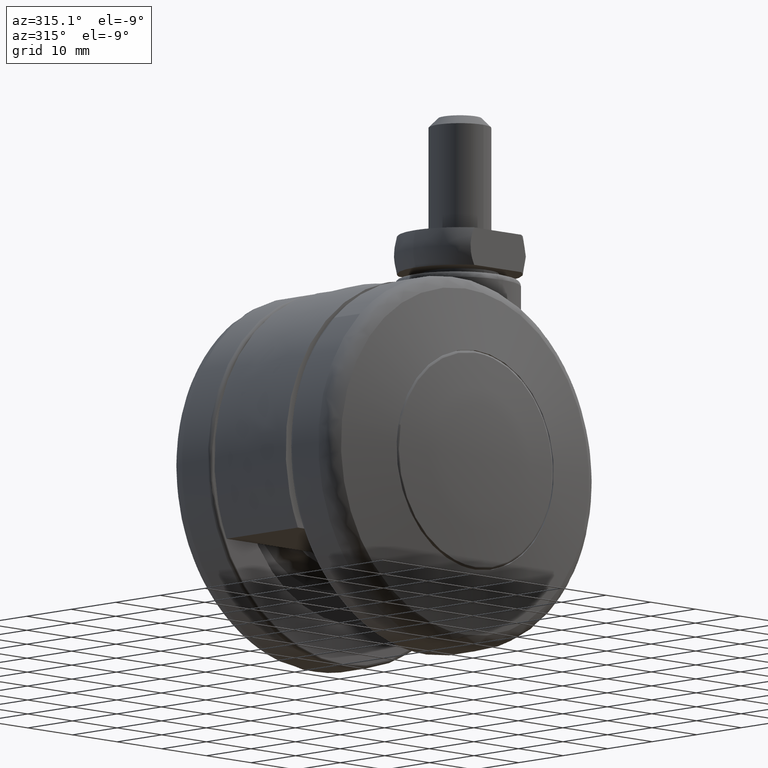
[diagram: clean part render]
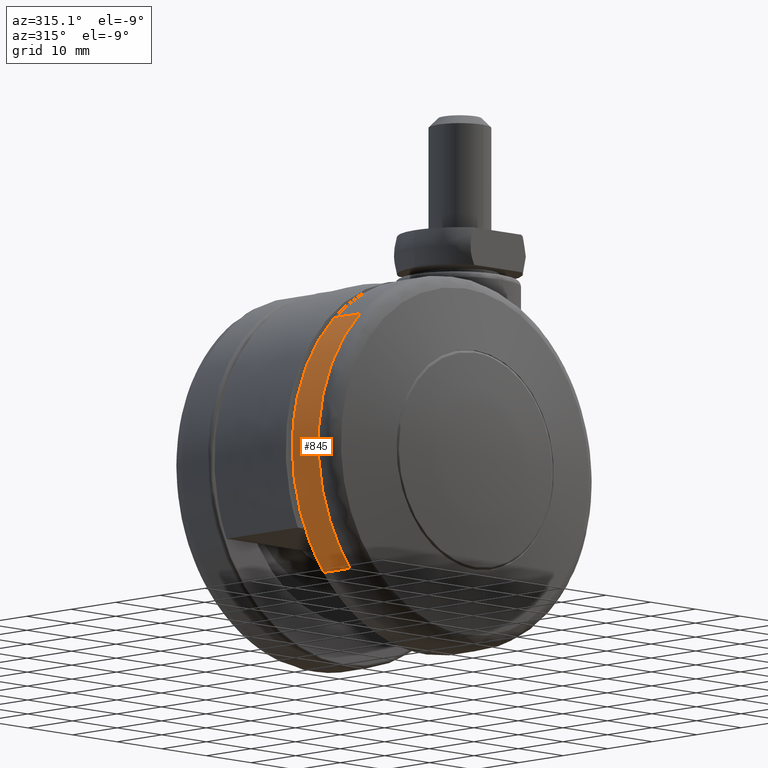
[diagram: same view with one face highlighted and labeled with its STEP entity id]
A machine part, auxiliary view. The second image highlights one B-rep face of the part: STEP entity #845.
In plain terms, the highlighted face is a freeform B-spline surface patch.
Its self-contained STEP definition (entity closure, byte-faithful):
#628=CARTESIAN_POINT('',(-22.906671958253089,-15.324326000000170,-19.372257994280488));
#629=VERTEX_POINT('',#628);
#645=CARTESIAN_POINT('',(-22.906671925308000,-9.499999999263743,-19.372258033236310));
#646=VERTEX_POINT('',#645);
#647=CARTESIAN_POINT('',(-22.906671925308000,-9.499999999263743,-19.372258033236310));
#648=CARTESIAN_POINT('',(-22.906671958253089,-15.324326000000170,-19.372257994280488));
#649=QUASI_UNIFORM_CURVE('',1,(#647,#648),.UNSPECIFIED.,.F.,.U.);
#650=EDGE_CURVE('',#646,#629,#649,.T.);
#699=CARTESIAN_POINT('',(-20.650636494735870,-9.499999999429269,21.761231866837889));
#700=VERTEX_POINT('',#699);
#714=CARTESIAN_POINT('',(-20.650636504086009,-15.324326000000100,21.761231857964962));
#715=VERTEX_POINT('',#714);
#716=CARTESIAN_POINT('',(-20.650636494735870,-9.499999999429269,21.761231866837889));
#717=CARTESIAN_POINT('',(-20.650636504086009,-15.324326000000100,21.761231857964962));
#718=QUASI_UNIFORM_CURVE('',1,(#716,#717),.UNSPECIFIED.,.F.,.U.);
#719=EDGE_CURVE('',#700,#715,#718,.T.);
#784=CARTESIAN_POINT('',(-20.650637270812609,-9.354391847863754,21.761231130368621));
#785=CARTESIAN_POINT('',(-41.200930745252087,-9.354391847863754,2.259730787533548));
#786=CARTESIAN_POINT('',(-22.906669288213937,-9.354391847863754,-19.372261151460755));
#787=CARTESIAN_POINT('',(-20.650637270812609,-15.473574354049020,21.761231130368621));
#788=CARTESIAN_POINT('',(-41.200930745252087,-15.473574354049017,2.259730787533548));
#789=CARTESIAN_POINT('',(-22.906669288213937,-15.473574354049017,-19.372261151460755));
#797=(BOUNDED_SURFACE()B_SPLINE_SURFACE(2,1,((#784,#787),(#785,#788),(#786,#789)),.UNSPECIFIED.,.F.,.F.,.U.)B_SPLINE_SURFACE_WITH_KNOTS((3,3),(2,2),(0.0,47.704306761263702),(0.0,6.119182506185267),.UNSPECIFIED.)GEOMETRIC_REPRESENTATION_ITEM()RATIONAL_B_SPLINE_SURFACE(((1.0,1.0),(0.718822509939086,0.718822509939086),(0.977505800795127,0.977505800795127)))REPRESENTATION_ITEM('')SURFACE());
#798=CARTESIAN_POINT('',(-20.650636504086027,-15.324326000000100,21.761231857964983));
#799=CARTESIAN_POINT('',(-30.0,-15.324326000000106,12.889017805063213));
#800=CARTESIAN_POINT('',(-30.0,-15.324326000000100,-1.653219E-015));
#801=CARTESIAN_POINT('',(-30.0,-15.324326000000099,-10.984772209580642));
#802=CARTESIAN_POINT('',(-22.906671958253089,-15.324326000000172,-19.372257994280485));
#810=(BOUNDED_CURVE()B_SPLINE_CURVE(2,(#798,#799,#800,#801,#802),.UNSPECIFIED.,.F.,.U.)B_SPLINE_CURVE_WITH_KNOTS((3,2,3),(0.621049521341824,0.750000000000000,0.862408068890895),.UNSPECIFIED.)CURVE()GEOMETRIC_REPRESENTATION_ITEM()RATIONAL_B_SPLINE_CURVE((0.853699661763192,0.848925116953086,1.0,0.868305755527766,0.855039476696886))REPRESENTATION_ITEM(''));
#811=EDGE_CURVE('',#715,#629,#810,.T.);
#812=ORIENTED_EDGE('',*,*,#811,.F.);
#813=ORIENTED_EDGE('',*,*,#719,.F.);
#814=CARTESIAN_POINT('',(-30.0,-9.499999997921702,1.242836E-014));
#815=VERTEX_POINT('',#814);
#816=CARTESIAN_POINT('',(-20.650636494735888,-9.499999999429246,21.761231866837889));
#817=CARTESIAN_POINT('',(-29.999999999999936,-9.499999998814607,12.889017812697901));
#818=CARTESIAN_POINT('',(-30.0,-9.499999997921702,1.242836E-014));
#826=(BOUNDED_CURVE()B_SPLINE_CURVE(2,(#816,#817,#818),.UNSPECIFIED.,.F.,.U.)B_SPLINE_CURVE_WITH_KNOTS((3,3),(0.621049521276981,0.749999999999999),.UNSPECIFIED.)CURVE()GEOMETRIC_REPRESENTATION_ITEM()RATIONAL_B_SPLINE_CURVE((0.853699661767994,0.848925116877117,0.999999999999998))REPRESENTATION_ITEM(''));
#827=EDGE_CURVE('',#700,#815,#826,.T.);
#828=ORIENTED_EDGE('',*,*,#827,.T.);
#829=CARTESIAN_POINT('',(-30.000000000000011,-9.499999997921705,1.242836E-014));
#830=CARTESIAN_POINT('',(-30.0,-9.499999998682689,-10.984772238510228));
#831=CARTESIAN_POINT('',(-22.906671925308004,-9.499999999263743,-19.372258033236317));
#839=(BOUNDED_CURVE()B_SPLINE_CURVE(2,(#829,#830,#831),.UNSPECIFIED.,.F.,.U.)B_SPLINE_CURVE_WITH_KNOTS((3,3),(0.750000000000000,0.862408069147947),.UNSPECIFIED.)CURVE()GEOMETRIC_REPRESENTATION_ITEM()RATIONAL_B_SPLINE_CURVE((1.0,0.868305755226611,0.855039476636212))REPRESENTATION_ITEM(''));
#840=EDGE_CURVE('',#815,#646,#839,.T.);
#841=ORIENTED_EDGE('',*,*,#840,.T.);
#842=ORIENTED_EDGE('',*,*,#650,.T.);
#843=EDGE_LOOP('',(#812,#813,#828,#841,#842));
#844=FACE_OUTER_BOUND('',#843,.T.);
#845=ADVANCED_FACE('',(#844),#797,.T.);